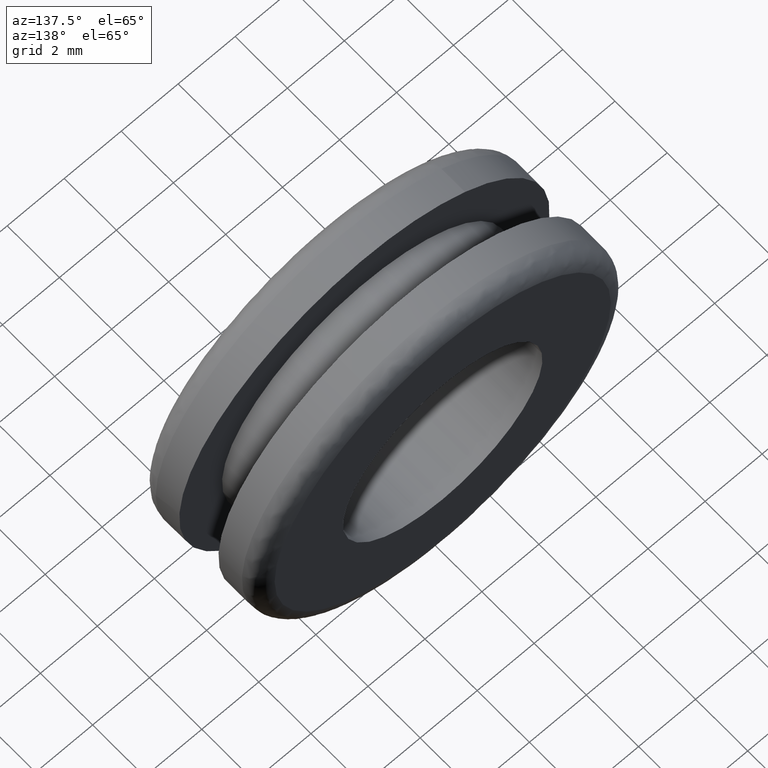
[diagram: clean part render]
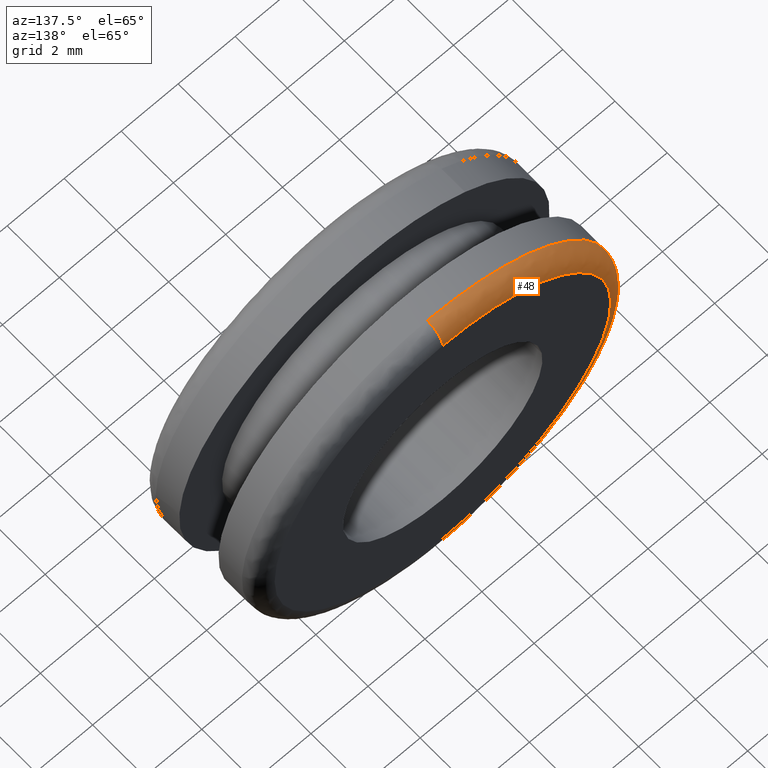
[diagram: same view with one face highlighted and labeled with its STEP entity id]
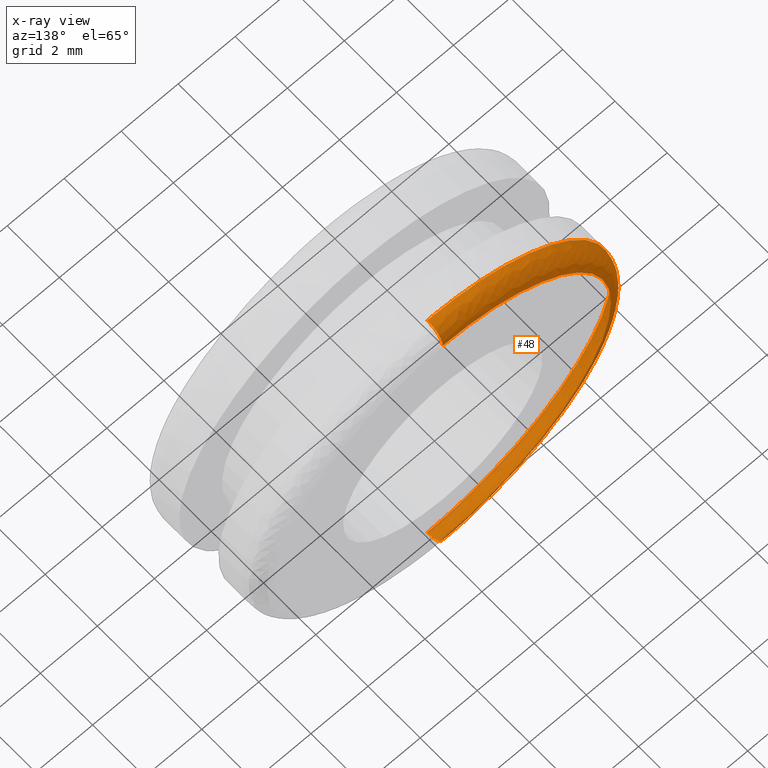
[diagram: x-ray of the same camera — body ghosted, the highlighted face saturated]
A machine part, auxiliary view. The second image highlights one B-rep face of the part: STEP entity #48.
The next image is the same camera in x-ray: the body ghosted, the highlighted face saturated — about 3% of this face is hidden behind the body in this view.
In plain terms, the highlighted face is a freeform B-spline surface patch.
Its self-contained STEP definition (entity closure, byte-faithful):
#48=ADVANCED_FACE('',(#141),#140,.T.);
#140=( BOUNDED_SURFACE() B_SPLINE_SURFACE( 2,2,((#264,#265,#266,#267,#268),(#269,#270,#271,#272,#273),(#274,#275,#276,#277,#278),(#279,#280,#281,#282,#283),(#284,#285,#286,#287,#288)), .UNSPECIFIED.,.F.,.F.,.F.) B_SPLINE_SURFACE_WITH_KNOTS((3,2,3),(3,2,3),(0.00000000000E+000,5.00000000000E-001,1.00000000000E+000),(0.00000000000E+000,5.00000000000E-001,1.00000000000E+000), .UNSPECIFIED. ) GEOMETRIC_REPRESENTATION_ITEM() RATIONAL_B_SPLINE_SURFACE(((1.00000000000E+000,7.07106781187E-001,1.00000000000E+000,7.07106781187E-001,1.00000000000E+000),(7.07106781187E-001,5.00000000000E-001,7.07106781187E-001,5.00000000000E-001,7.07106781187E-001),(1.00000000000E+000,7.07106781187E-001,1.00000000000E+000,7.07106781187E-001,1.00000000000E+000),(7.07106781187E-001,5.00000000000E-001,7.07106781187E-001,5.00000000000E-001,7.07106781187E-001),(1.00000000000E+000,7.07106781187E-001,1.00000000000E+000,7.07106781187E-001,1.00000000000E+000))) REPRESENTATION_ITEM('') SURFACE() );
#141=FACE_OUTER_BOUND('',#289,.T.);
#264=CARTESIAN_POINT('',(-5.85321179546E-015,3.90000000000E+000,5.30000000000E+000));
#265=CARTESIAN_POINT('',(-6.33986825548E-015,4.50000000000E+000,5.30000000000E+000));
#266=CARTESIAN_POINT('',(-6.41334463671E-015,4.50000000000E+000,5.90000000000E+000));
#267=CARTESIAN_POINT('',(-6.48682101794E-015,4.50000000000E+000,6.50000000000E+000));
#268=CARTESIAN_POINT('',(-6.00016455791E-015,3.90000000000E+000,6.50000000000E+000));
#269=CARTESIAN_POINT('',(-5.30000000000E+000,3.90000000000E+000,5.30000000000E+000));
#270=CARTESIAN_POINT('',(-5.30000000000E+000,4.50000000000E+000,5.30000000000E+000));
#271=CARTESIAN_POINT('',(-5.90000000000E+000,4.50000000000E+000,5.90000000000E+000));
#272=CARTESIAN_POINT('',(-6.50000000000E+000,4.50000000000E+000,6.50000000000E+000));
#273=CARTESIAN_POINT('',(-6.50000000000E+000,3.90000000000E+000,6.50000000000E+000));
#274=CARTESIAN_POINT('',(-5.30000000000E+000,3.90000000000E+000,-1.76717447255E-014));
#275=CARTESIAN_POINT('',(-5.30000000000E+000,4.50000000000E+000,-2.17152675964E-014));
#276=CARTESIAN_POINT('',(-5.90000000000E+000,4.50000000000E+000,-2.17520045736E-014));
#277=CARTESIAN_POINT('',(-6.50000000000E+000,4.50000000000E+000,-2.17887415509E-014));
#278=CARTESIAN_POINT('',(-6.50000000000E+000,3.90000000000E+000,-1.77452186800E-014));
#279=CARTESIAN_POINT('',(-5.30000000000E+000,3.90000000000E+000,-5.30000000000E+000));
#280=CARTESIAN_POINT('',(-5.30000000000E+000,4.50000000000E+000,-5.30000000000E+000));
#281=CARTESIAN_POINT('',(-5.90000000000E+000,4.50000000000E+000,-5.90000000000E+000));
#282=CARTESIAN_POINT('',(-6.50000000000E+000,4.50000000000E+000,-6.50000000000E+000));
#283=CARTESIAN_POINT('',(-6.50000000000E+000,3.90000000000E+000,-6.50000000000E+000));
#284=CARTESIAN_POINT('',(-5.20419186395E-015,3.90000000000E+000,-5.30000000000E+000));
#285=CARTESIAN_POINT('',(-5.69084832398E-015,4.50000000000E+000,-5.30000000000E+000));
#286=CARTESIAN_POINT('',(-5.69085075070E-015,4.50000000000E+000,-5.90000000000E+000));
#287=CARTESIAN_POINT('',(-5.69085317742E-015,4.50000000000E+000,-6.50000000000E+000));
#288=CARTESIAN_POINT('',(-5.20419671739E-015,3.90000000000E+000,-6.50000000000E+000));
#289=EDGE_LOOP('',(#437,#438,#439,#440,#441,#442,#443));
#437=ORIENTED_EDGE('',*,*,#522,.F.);
#438=ORIENTED_EDGE('',*,*,#523,.F.);
#439=ORIENTED_EDGE('',*,*,#524,.F.);
#440=ORIENTED_EDGE('',*,*,#525,.F.);
#441=ORIENTED_EDGE('',*,*,#498,.T.);
#442=ORIENTED_EDGE('',*,*,#500,.T.);
#443=ORIENTED_EDGE('',*,*,#526,.T.);
#498=EDGE_CURVE('',#619,#620,#621,.T.);
#500=EDGE_CURVE('',#620,#627,#634,.T.);
#522=EDGE_CURVE('',#783,#784,#785,.T.);
#523=EDGE_CURVE('',#791,#783,#792,.T.);
#524=EDGE_CURVE('',#798,#791,#799,.T.);
#525=EDGE_CURVE('',#619,#798,#805,.T.);
#526=EDGE_CURVE('',#627,#784,#811,.T.);
#619=VERTEX_POINT('',#926);
#620=VERTEX_POINT('',#927);
#621=CIRCLE('',#931,5.90000000070E+000);
#627=VERTEX_POINT('',#932);
#634=CIRCLE('',#940,5.90000000070E+000);
#783=VERTEX_POINT('',#1034);
#784=VERTEX_POINT('',#1035);
#785=CIRCLE('',#1039,6.50000000000E+000);
#791=VERTEX_POINT('',#1040);
#792=CIRCLE('',#1044,6.50000000000E+000);
#798=VERTEX_POINT('',#1045);
#799=CIRCLE('',#1049,6.50000000000E+000);
#805=(BOUNDED_CURVE() B_SPLINE_CURVE(2,(#1050,#1051,#1052),.UNSPECIFIED.,.F.,.F.) B_SPLINE_CURVE_WITH_KNOTS((3,3),(5.00000000000E-001,1.00000000000E+000),.UNSPECIFIED.) CURVE() GEOMETRIC_REPRESENTATION_ITEM() RATIONAL_B_SPLINE_CURVE((1.00000000000E+000,7.07106781187E-001,1.00000000000E+000)) REPRESENTATION_ITEM('') );
#811=(BOUNDED_CURVE() B_SPLINE_CURVE(3,(#1053,#1054,#1055,#1056),.UNSPECIFIED.,.F.,.F.) B_SPLINE_CURVE_WITH_KNOTS((4,4),(4.99999961450E-001,1.00000000000E+000),.UNSPECIFIED.) CURVE() GEOMETRIC_REPRESENTATION_ITEM() RATIONAL_B_SPLINE_CURVE((1.00000000000E+000,1.00000000000E+000,1.00000000000E+000,1.00000000000E+000)) REPRESENTATION_ITEM('') );
#926=CARTESIAN_POINT('',(-5.80077222970E-015,4.50000000000E+000,5.90000000140E+000));
#927=CARTESIAN_POINT('',(-5.90000000070E+000,4.50000000000E+000,1.33226762955E-015));
#928=CARTESIAN_POINT('',(1.38755673618E-012,4.50000000000E+000,6.99001745375E-010));
#929=DIRECTION('',(-2.19525544382E-016,-1.00000000000E+000,-4.42275138600E-015));
#930=DIRECTION('',(-1.00000000000E+000,2.19525544906E-016,-1.18474952071E-010));
#931=AXIS2_PLACEMENT_3D('',#928,#929,#930);
#932=CARTESIAN_POINT('',(6.12307882634E-004,4.50000000000E+000,-5.89999996823E+000));
#937=CARTESIAN_POINT('',(1.38755673618E-012,4.50000000000E+000,6.99001745375E-010));
#938=DIRECTION('',(-2.19525544382E-016,-1.00000000000E+000,-4.42275138600E-015));
#939=DIRECTION('',(-1.00000000000E+000,2.19525544906E-016,-1.18474952071E-010));
#940=AXIS2_PLACEMENT_3D('',#937,#938,#939);
#1034=CARTESIAN_POINT('',(-2.28551682706E+000,3.90000000002E+000,-6.08493326448E+000));
#1035=CARTESIAN_POINT('',(0.00000000000E+000,3.90000000000E+000,-6.50000000000E+000));
#1036=CARTESIAN_POINT('',(-6.77236045021E-014,3.90000000031E+000,-4.11226608321E-013));
#1037=DIRECTION('',(1.04039210584E-015,-1.00000000000E+000,4.69573136592E-011));
#1038=DIRECTION('',(3.53301966660E-001,4.39293729598E-011,9.35509337395E-001));
#1039=AXIS2_PLACEMENT_3D('',#1036,#1037,#1038);
#1040=CARTESIAN_POINT('',(-2.29646278329E+000,3.90000000002E+000,-6.08081069307E+000));
#1041=CARTESIAN_POINT('',(-6.77236045021E-014,3.90000000031E+000,-4.11226608321E-013));
#1042=DIRECTION('',(1.04039210584E-015,-1.00000000000E+000,4.69573136592E-011));
#1043=DIRECTION('',(3.53301966660E-001,4.39293729598E-011,9.35509337395E-001));
#1044=AXIS2_PLACEMENT_3D('',#1041,#1042,#1043);
#1045=CARTESIAN_POINT('',(-5.96323979441E-015,3.90000000000E+000,6.50000000000E+000));
#1046=CARTESIAN_POINT('',(1.55431223448E-014,3.90000000000E+000,2.92654789291E-012));
#1047=DIRECTION('',(5.42707238191E-016,-1.00000000000E+000,-2.03842110799E-016));
#1048=DIRECTION('',(-3.51617753693E-001,-2.46519032882E-032,-9.36143661672E-001));
#1049=AXIS2_PLACEMENT_3D('',#1046,#1047,#1048);
#1050=CARTESIAN_POINT('',(-6.41334463671E-015,4.50000000000E+000,5.90000000000E+000));
#1051=CARTESIAN_POINT('',(-6.48682101794E-015,4.50000000000E+000,6.50000000000E+000));
#1052=CARTESIAN_POINT('',(-6.00016455791E-015,3.90000000000E+000,6.50000000000E+000));
#1053=CARTESIAN_POINT('',(-4.73695160306E-015,4.50000000000E+000,-5.89999993458E+000));
#1054=CARTESIAN_POINT('',(-4.76309711887E-015,4.46568545656E+000,-6.26568539333E+000));
#1055=CARTESIAN_POINT('',(-4.66441061735E-015,4.26568545656E+000,-6.46568541514E+000));
#1056=CARTESIAN_POINT('',(-4.44089209850E-015,3.90000000000E+000,-6.50000000000E+000));